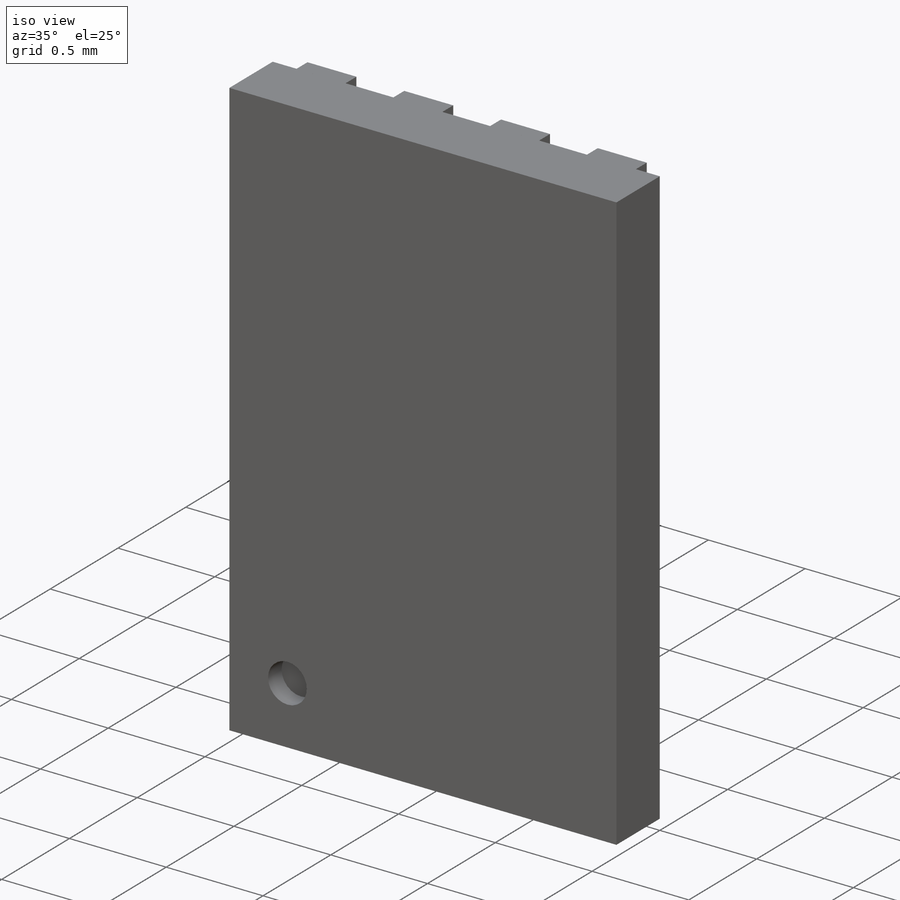
[diagram: iso view]
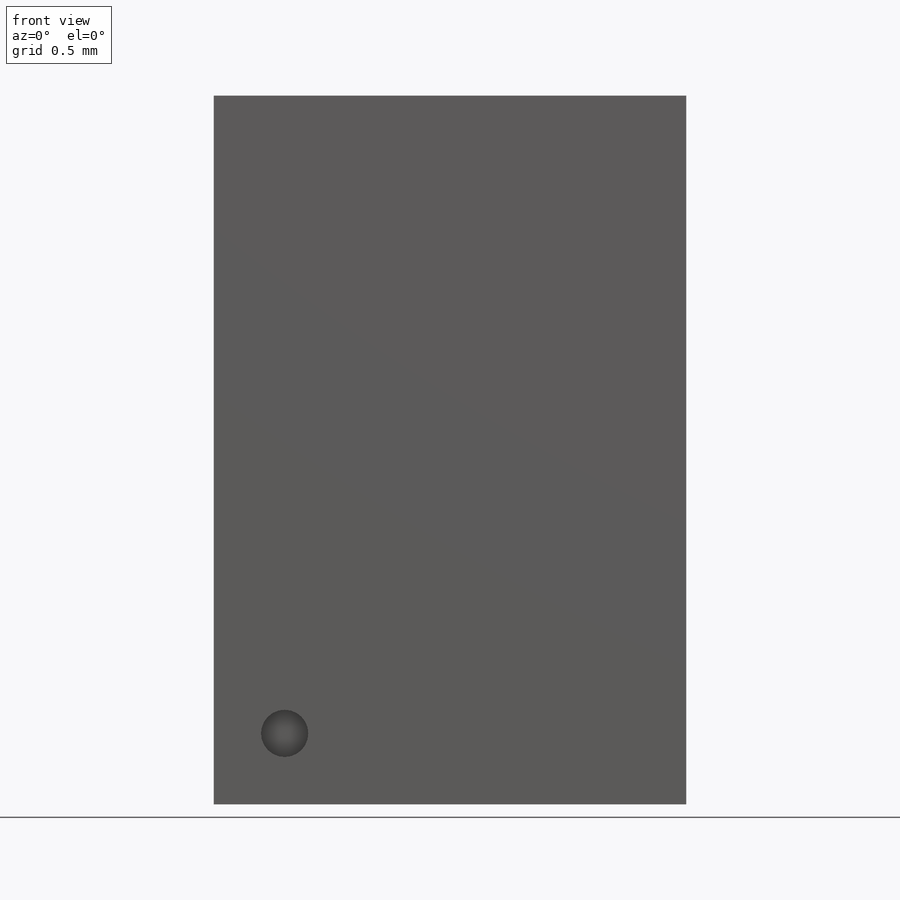
[diagram: front view]
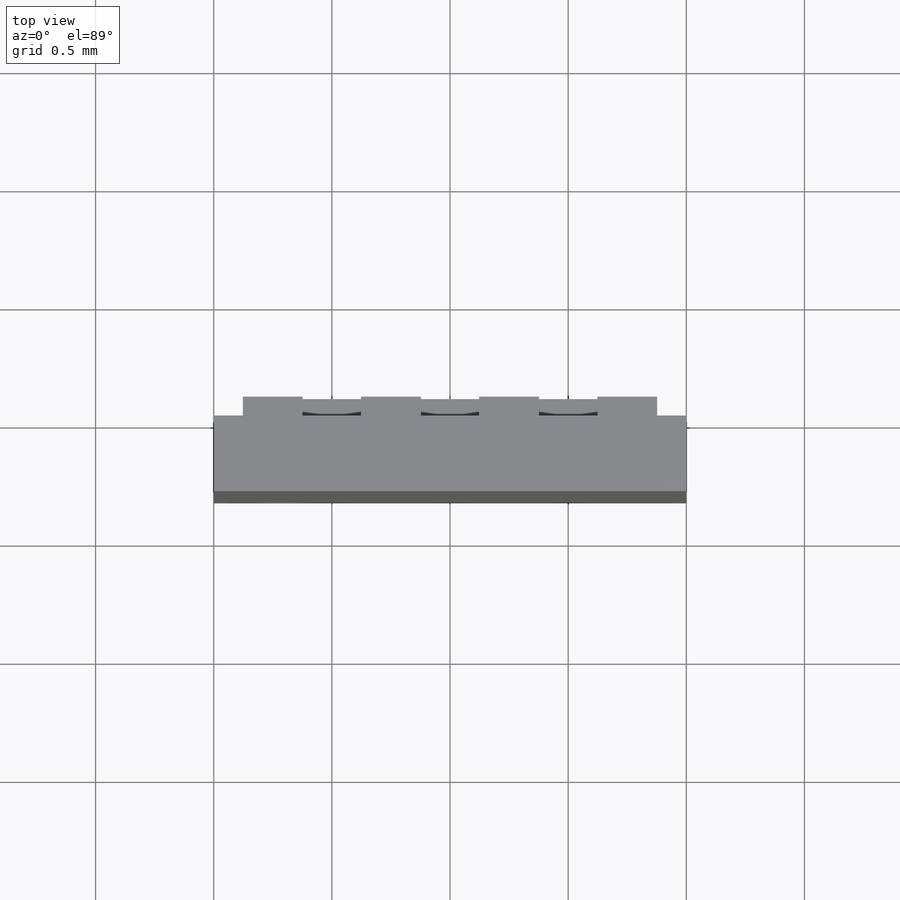
[diagram: top view]
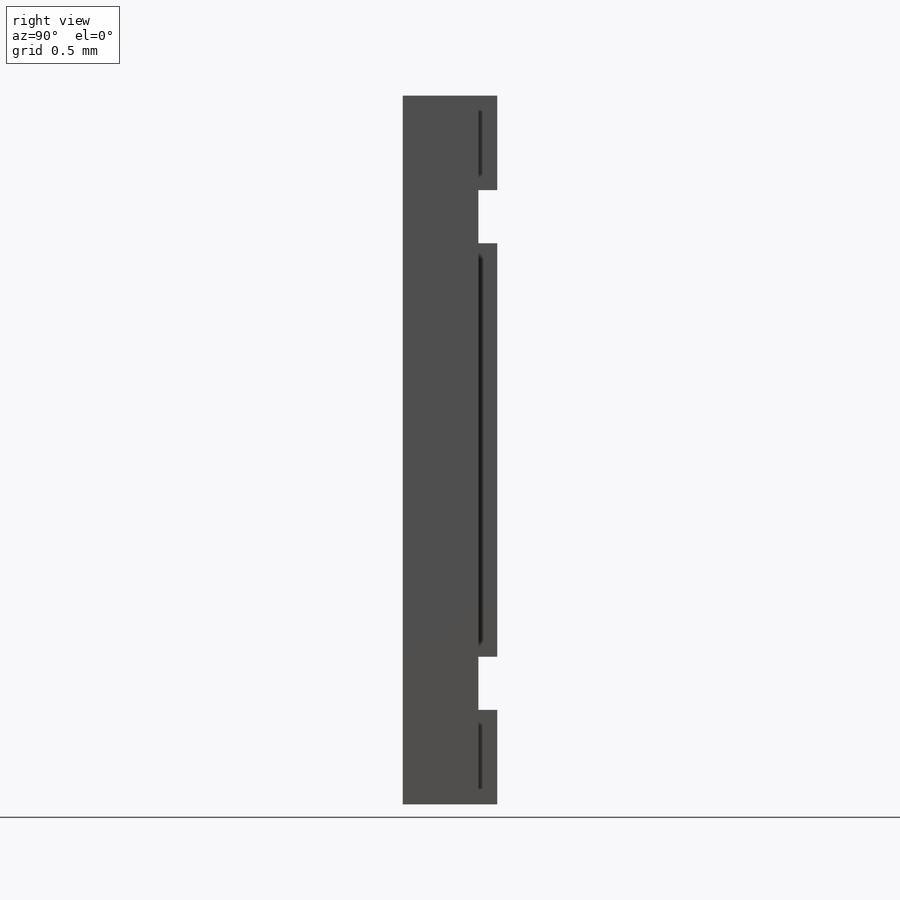
[diagram: right view]
SOLIDWORKS PART (.sldprt)
format: sldprt  version: not decoded by parser v0  size: 196,096 bytes
history: native  units: mm
features: sketch x3, extrude x2, material x1, cut_extrude x1 (+13 scaffold rows collapsed)
feature tree (20):
  scaffold x13  (default folders/planes/origin — collapsed)
  material  "Material <not specified>"
  sketch  "Sketch1"  dims[D1=2.0mm D2=3.0mm]
  extrude  "Boss-Extrude1"  Depth=0.32mm
  sketch  "Sketch2"  dims[D3=0.2mm D1=0.3mm D2=0.3mm]
  cut_extrude  "Cut-Extrude1"  Depth=0.1mm
  sketch  "Sketch3"  dims[c1.D1=1.75mm c1.D2=1.63mm c1.D3=~0.644385mm c2.D3=45.0deg c2.D4=0.5mm c2.D5=0.4mm c2.D6=0.253mm c2.D7=0.75mm c2.D8=4.0 c2.D9=2.0]
  extrude  "Boss-Extrude2"  Depth=0.08mm
decode coverage: 6 of 6 modeling features carry decoded parameters
note: ~ marks probable driven/reference dimensions
note: suppression state not decoded; provenance and decode notes live in map.json
